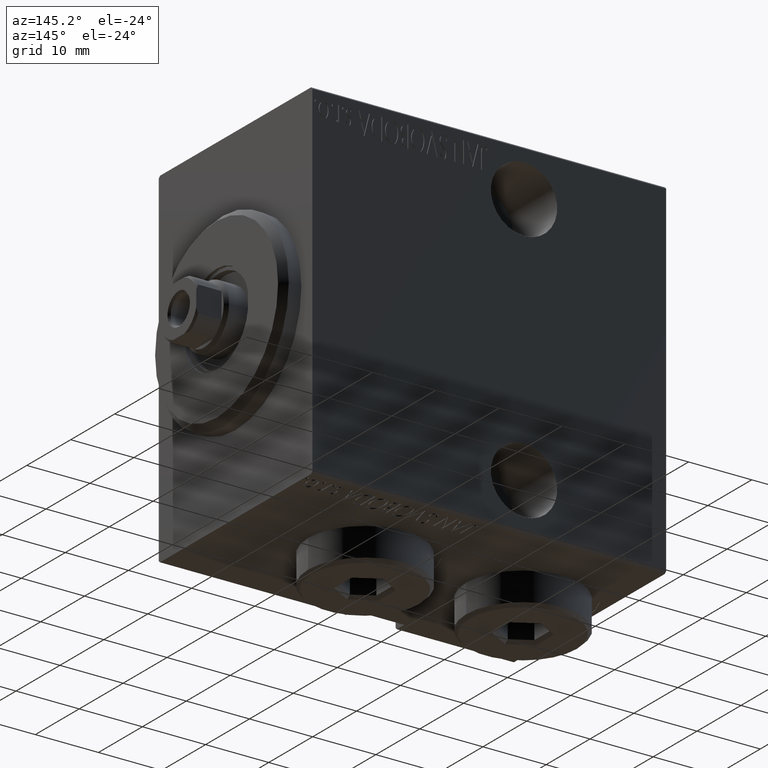
[diagram: clean part render]
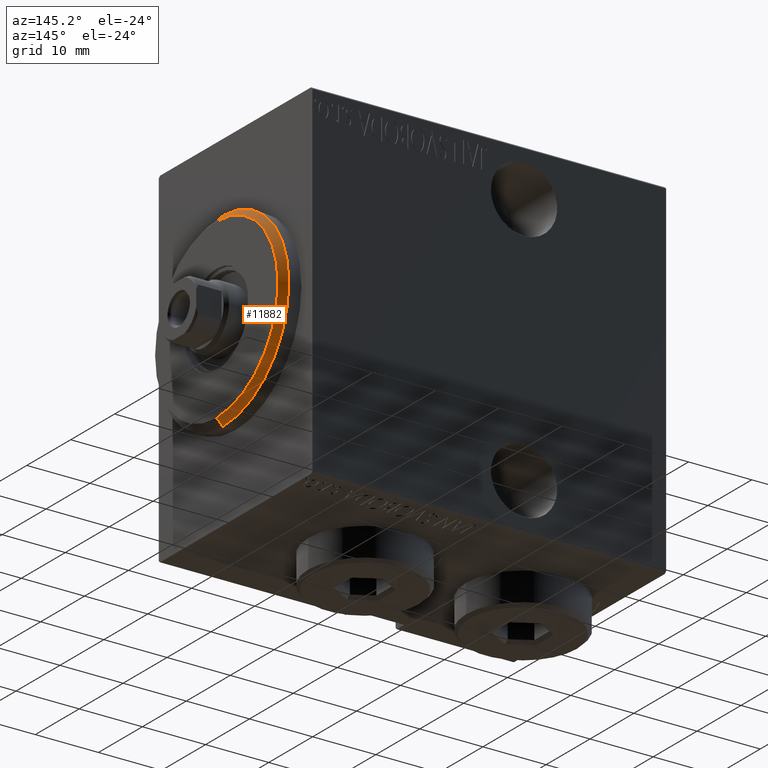
[diagram: same view with one face highlighted and labeled with its STEP entity id]
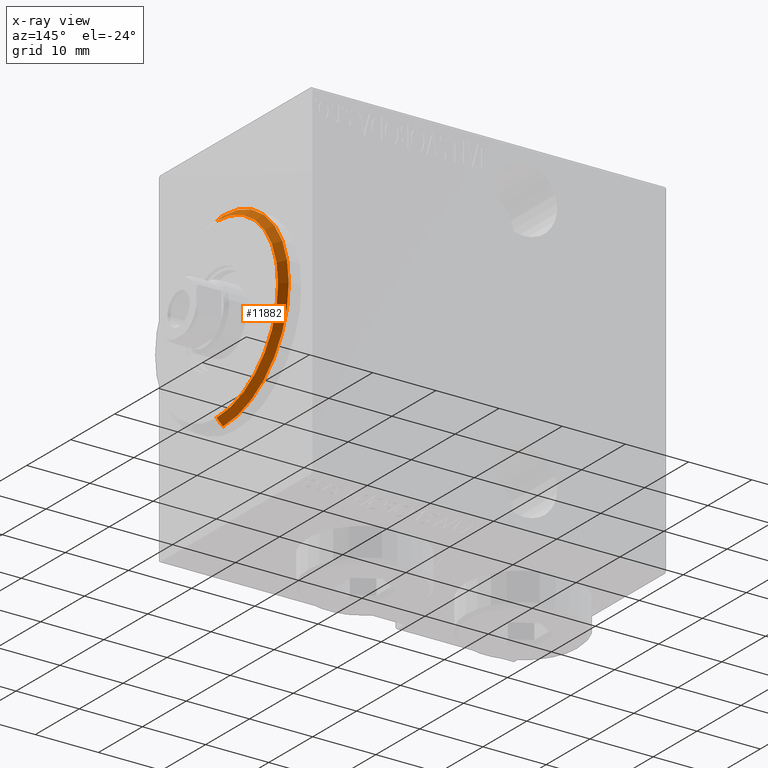
[diagram: x-ray of the same camera — body ghosted, the highlighted face saturated]
A machine part, auxiliary view. The second image highlights one B-rep face of the part: STEP entity #11882.
The next image is the same camera in x-ray: the body ghosted, the highlighted face saturated — about 0% of this face is hidden behind the body in this view.
In plain terms, the highlighted conical surface has half-angle 45 deg.
Its self-contained STEP definition (entity closure, byte-faithful):
#207 = DIRECTION ( 'NONE',  ( 0.000000000000000000, 0.000000000000000000, 1.000000000000000000 ) ) ;
#3639 = DIRECTION ( 'NONE',  ( 0.000000000000000000, 0.000000000000000000, -1.000000000000000000 ) ) ;
#3739 = VECTOR ( 'NONE', #3815, 999.9999999999998863 ) ;
#3783 = AXIS2_PLACEMENT_3D ( 'NONE', #10784, #38064, #24898 ) ;
#3815 = DIRECTION ( 'NONE',  ( -0.7071067811865482389, 0.000000000000000000, 0.7071067811865469066 ) ) ;
#4312 = ORIENTED_EDGE ( 'NONE', *, *, #9017, .T. ) ;
#4399 = CIRCLE ( 'NONE', #15818, 13.99999999999998934 ) ;
#5174 = ORIENTED_EDGE ( 'NONE', *, *, #24413, .F. ) ;
#7808 = CARTESIAN_POINT ( 'NONE',  ( 3.000000000000000000, 0.000000000000000000, 13.99999999999998934 ) ) ;
#9017 = EDGE_CURVE ( 'NONE', #14687, #31399, #11466, .T. ) ;
#9671 = DIRECTION ( 'NONE',  ( 1.000000000000000000, -0.000000000000000000, 0.000000000000000000 ) ) ;
#10137 = ORIENTED_EDGE ( 'NONE', *, *, #32097, .F. ) ;
#10464 = FACE_OUTER_BOUND ( 'NONE', #25925, .T. ) ;
#10784 = CARTESIAN_POINT ( 'NONE',  ( 1.999999999999988676, 0.000000000000000000, 0.000000000000000000 ) ) ;
#11262 = DIRECTION ( 'NONE',  ( -0.7071067811865482389, 8.659560562354926695E-17, -0.7071067811865469066 ) ) ;
#11466 = LINE ( 'NONE', #28269, #23428 ) ;
#11882 = ADVANCED_FACE ( 'NONE', ( #10464 ), #20002, .T. ) ;
#14317 = CARTESIAN_POINT ( 'NONE',  ( 1.999999999999988676, 0.000000000000000000, 15.00000000000000000 ) ) ;
#14532 = CARTESIAN_POINT ( 'NONE',  ( 3.000000000000000000, 0.000000000000000000, 13.99999999999998934 ) ) ;
#14687 = VERTEX_POINT ( 'NONE', #19906 ) ;
#15818 = AXIS2_PLACEMENT_3D ( 'NONE', #40283, #9671, #3639 ) ;
#19906 = CARTESIAN_POINT ( 'NONE',  ( 3.000000000000000000, 1.775737858763661226E-15, -13.99999999999998934 ) ) ;
#20002 = CONICAL_SURFACE ( 'NONE', #22897, 13.99999999999998934, 0.7853981633974473908 ) ;
#20415 = ORIENTED_EDGE ( 'NONE', *, *, #23942, .F. ) ;
#22897 = AXIS2_PLACEMENT_3D ( 'NONE', #24124, #41075, #207 ) ;
#23050 = CIRCLE ( 'NONE', #3783, 15.00000000000000000 ) ;
#23428 = VECTOR ( 'NONE', #11262, 999.9999999999998863 ) ;
#23942 = EDGE_CURVE ( 'NONE', #14687, #37516, #4399, .T. ) ;
#24124 = CARTESIAN_POINT ( 'NONE',  ( 3.000000000000000000, 0.000000000000000000, 0.000000000000000000 ) ) ;
#24413 = EDGE_CURVE ( 'NONE', #37516, #36452, #38427, .T. ) ;
#24898 = DIRECTION ( 'NONE',  ( 0.000000000000000000, 0.000000000000000000, -1.000000000000000000 ) ) ;
#25925 = EDGE_LOOP ( 'NONE', ( #20415, #4312, #10137, #5174 ) ) ;
#28269 = CARTESIAN_POINT ( 'NONE',  ( 3.000000000000000000, 1.714505518806293257E-15, -13.99999999999998934 ) ) ;
#28652 = CARTESIAN_POINT ( 'NONE',  ( 1.999999999999988676, 1.836970198721029589E-15, -15.00000000000000000 ) ) ;
#31399 = VERTEX_POINT ( 'NONE', #28652 ) ;
#32097 = EDGE_CURVE ( 'NONE', #36452, #31399, #23050, .T. ) ;
#36452 = VERTEX_POINT ( 'NONE', #14317 ) ;
#37516 = VERTEX_POINT ( 'NONE', #14532 ) ;
#38064 = DIRECTION ( 'NONE',  ( -1.000000000000000000, 0.000000000000000000, 0.000000000000000000 ) ) ;
#38427 = LINE ( 'NONE', #7808, #3739 ) ;
#40283 = CARTESIAN_POINT ( 'NONE',  ( 3.000000000000000000, 0.000000000000000000, 0.000000000000000000 ) ) ;
#41075 = DIRECTION ( 'NONE',  ( -1.000000000000000000, 0.000000000000000000, 0.000000000000000000 ) ) ;